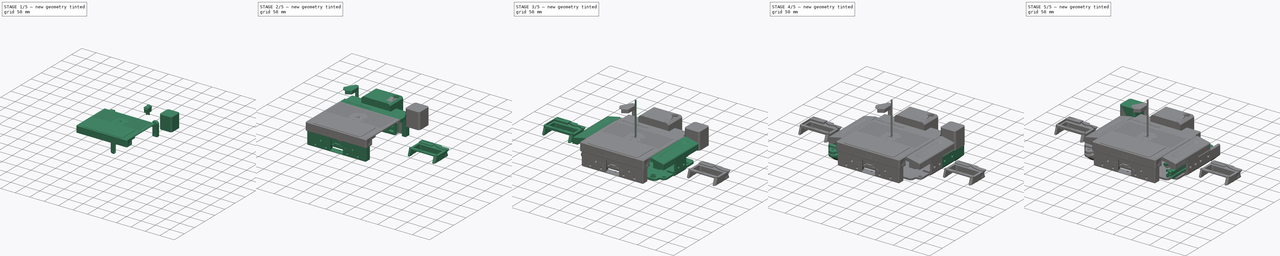
[diagram: build sequence overview — one tinted view per stage of 5, left to right]
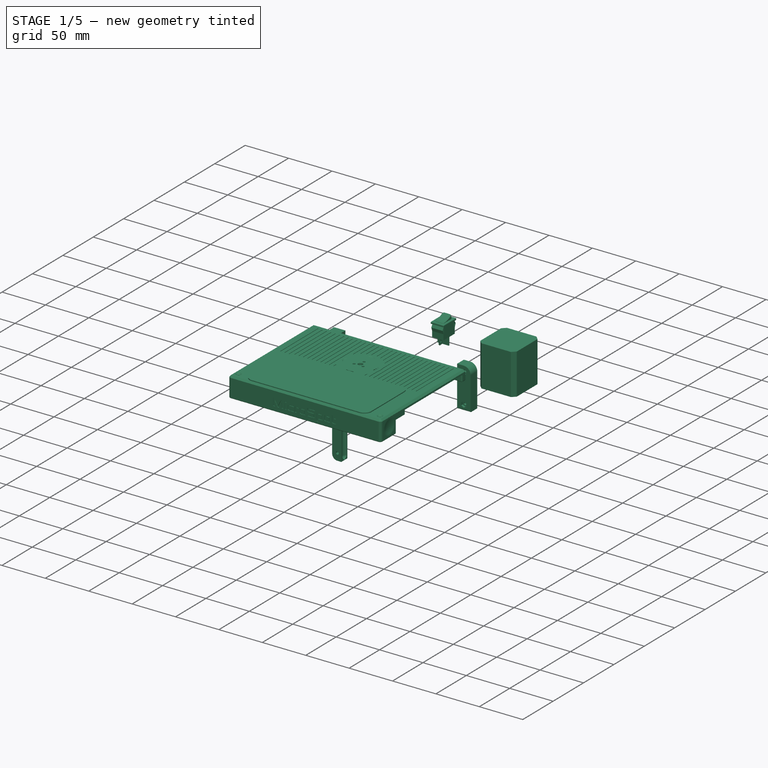
[diagram: stage 1 of 5 — iso view after this stage's code; geometry added in this stage tinted green]
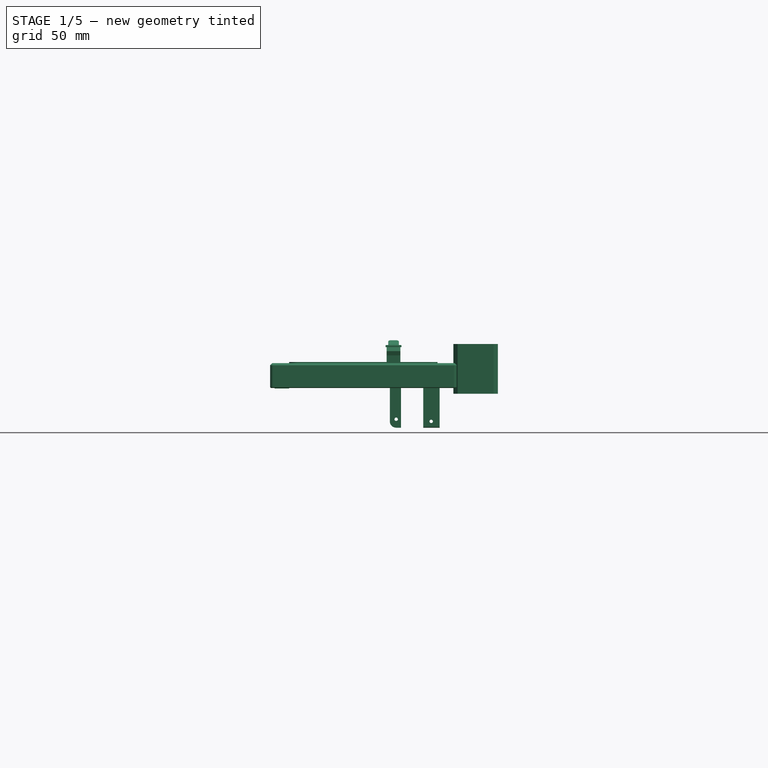
[diagram: stage 1 of 5 — front view after this stage's code; geometry added in this stage tinted green]
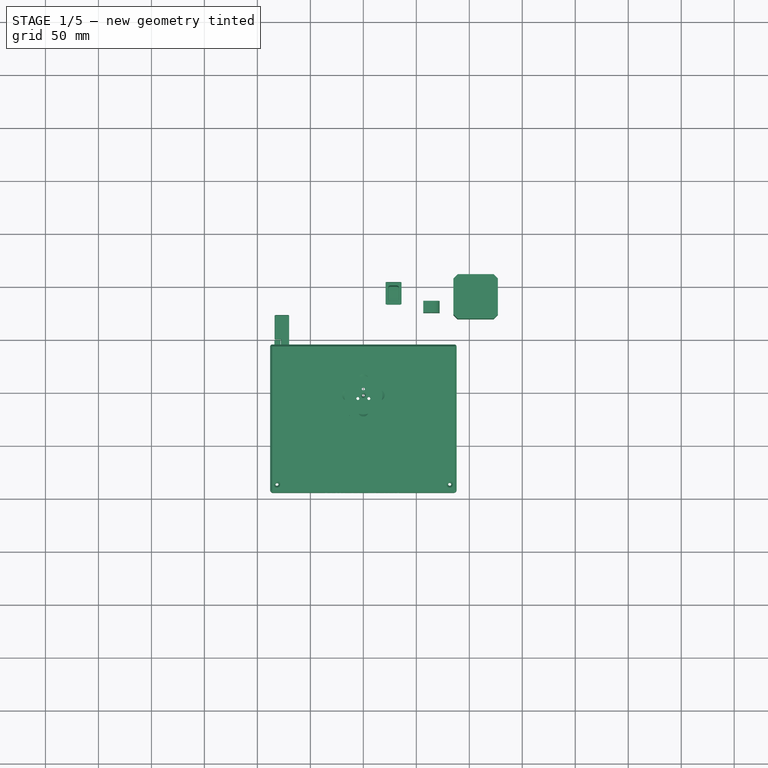
[diagram: stage 1 of 5 — top view after this stage's code; geometry added in this stage tinted green]
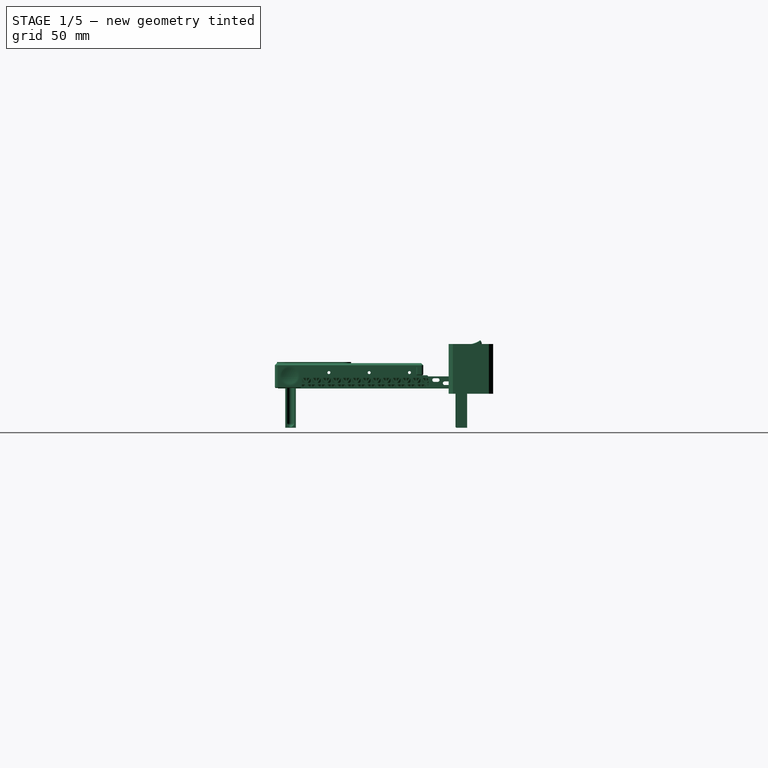
[diagram: stage 1 of 5 — right view after this stage's code; geometry added in this stage tinted green]
FCSTD DOCUMENT  (FreeCAD 0.16RUnknown)
Label: Assembly
License: CreativeCommons Attribution-ShareAlike
LicenseURL: http://creativecommons.org/licenses/by-sa/4.0/
objects: Part::FeaturePython×46, App::DocumentObjectGroup×30, Part::Feature×22, Part::Mirroring×22, Part::Cylinder×8, Sketcher::SketchObject×2, Part::Box×2, Part::Compound×2, PartDesign::Pad×1, Part::Chamfer×1
note: 107 computed .brp shape members not serialized (recipe doc carries the construction recipe); baked Part::Feature solids carry a one-line shape summary decoded from their .brp

FEATURE [Part::FeaturePython] FrontCraneGuide_01  label="FrontCraneGuide"  # a2plus imported part (geometry in sourceFile) (typed FeaturePython)
  Placement = pos=(0,-75,10) rot=(0,0,1;0rad)
  fixedPosition = false
  sourceFile = ./Step/Printed/Axes/ZAxis/FrontCraneGuide.fcstd
  timeLastImport = 1.541e+09
  updateColors = true
FEATURE [Part::FeaturePython] DrawerGuide_01  label="DrawerGuide"  # a2plus imported part (geometry in sourceFile) (typed FeaturePython)
  Placement = pos=(70,-92,25) rot=(0,0,1;0rad)
  fixedPosition = false
  sourceFile = ./src/Axes/ZCarriage/DrawerGuide.fcstd
  timeLastImport = 1.541e+09
  updateColors = true
FEATURE [Part::Mirroring] Part__Mirroring030  label="DrawerGuide (Mirror #20)"
  Base = (0,0,0)
  Normal = (1,0,0)
  Source = -> DrawerGuide_01
FEATURE [Part::FeaturePython] BackCraneGuide_step1_01  label="BackCraneGuide"  # a2plus imported part (geometry in sourceFile) (typed FeaturePython)
  Placement = pos=(0,60,46) rot=(0,0,1;0rad)
  fixedPosition = false
  sourceFile = ./Step/Printed/Axes/ZAxis/BackCraneGuide.step
  timeLastImport = 1.541e+09
  updateColors = true
FEATURE [App::DocumentObjectGroup] Group028  label="Z_PrintedStructural"
  Group = -> [FocusWheelHolder_01,FrontCrane_01,UpperBackCover_01,Part__Mirroring031,ThumbWheel_01]
FEATURE [Part::FeaturePython] UpperFrontRail_01  label="UpperFrontRail"  # a2plus imported part (geometry in sourceFile) (typed FeaturePython)
  Placement = pos=(78,-92,25) rot=(0,0,1;0rad)
  fixedPosition = false
  sourceFile = ./src/UpperLid/UpperLidRail.fcstd
  timeLastImport = 1.541e+09
  updateColors = true
FEATURE [Part::Mirroring] Part__Mirroring032  label="UpperFrontRail (Mirror #22)"
  Base = (0,0,0)
  Normal = (1,0,0)
  Source = -> UpperFrontRail_01
FEATURE [Part::FeaturePython] UpperCover_01  label="UpperCover"  # a2plus imported part (geometry in sourceFile) (typed FeaturePython)
  Placement = pos=(0,-3,45) rot=(0,0,1;0rad)
  fixedPosition = false
  sourceFile = ./src/UpperLid/UpperCover.fcstd
  timeLastImport = 1.541e+09
  updateColors = true
FEATURE [App::DocumentObjectGroup] Group032  label="ElecBox_PrintedStructural"
  Group = -> [Lid_step1_01,ElecBase_step1_01]
FEATURE [App::DocumentObjectGroup] Group033  label="Z_PrntedTribologic"
  Group = -> [Part__Mirroring025,Part__Mirroring026,Part__Mirroring027,Part__Mirroring030,DrawerGuide_01,FrontGuide_01,FrontCraneGuide_01,BackCraneGuide_step1_01]
FEATURE [App::DocumentObjectGroup] Group027  label="ZAxis"
  Group = -> [Group028,Group033]
FEATURE [App::DocumentObjectGroup] Group036  label="UpperLid_PrintedStructural"
  Group = -> [UpperCover_01]
FEATURE [App::DocumentObjectGroup] Group037  label="UpperLid_PrintedTribologic"
  Group = -> [Part__Mirroring032,UpperFrontRail_01]
FEATURE [Sketcher::SketchObject] Sketch001  label="GelPad_src"
  sketch-geometry (8):
    g0: LineSegment StartX=-62 StartY=35 StartZ=0 EndX=62 EndY=35 EndZ=0
    g1: LineSegment StartX=70 StartY=27 StartZ=0 EndX=70 EndY=-27 EndZ=0
    g2: LineSegment StartX=62 StartY=-35 StartZ=0 EndX=-62 EndY=-35 EndZ=0
    g3: LineSegment StartX=-70 StartY=-27 StartZ=0 EndX=-70 EndY=27 EndZ=0
    g4: ArcOfCircle CenterX=-62 CenterY=27 CenterZ=0 NormalX=0 NormalY=0 NormalZ=1 Radius=8 StartAngle=1.5708 EndAngle=3.14159
    g5: ArcOfCircle CenterX=-62 CenterY=-27 CenterZ=0 NormalX=0 NormalY=0 NormalZ=1 Radius=8 StartAngle=3.14159 EndAngle=4.71239
    g6: ArcOfCircle CenterX=62 CenterY=27 CenterZ=0 NormalX=0 NormalY=0 NormalZ=1 Radius=8 StartAngle=0 EndAngle=1.5708
    g7: ArcOfCircle CenterX=62 CenterY=-27 CenterZ=0 NormalX=0 NormalY=0 NormalZ=1 Radius=8 StartAngle=4.71239 EndAngle=6.28319
  constraints (19):
    c: Horizontal(g0)
    c: Horizontal(g2)
    c: Vertical(g1)
    c: Vertical(g3)
    c: Tangent(g0,g4) = 1.5708
    c: Tangent(g3,g4) = 1.5708
    c: Tangent(g3,g5) = 1.5708
    c: Tangent(g2,g5) = 1.5708
    c: Tangent(g0,g6) = 1.5708
    c: Tangent(g1,g6) = 1.5708
    c: Tangent(g1,g7) = 1.5708
    c: Tangent(g2,g7) = 1.5708
    c: Equal(g4,g5)
    c: Equal(g5,g7)
    c: Equal(g7,g6)
    c: DistanceX(g3,g1) = 140
    c: DistanceY(g2,g0) = 70
    c: Radius(g6) = 8
    c: Symmetric(g5,g6,g-1)
FEATURE [PartDesign::Pad] Pad  label="GelPad_src001"
  Length = 1
  Length2 = 100
  Sketch = -> Sketch001
  Type = 0
FEATURE [App::DocumentObjectGroup] Group021  label="Component_src"
  Group = -> [Cylinder007,Pad]
FEATURE [Part::FeaturePython] Clone021  label="GelPad"  # Draft clone (typed FeaturePython)
  Objects = -> [Pad]
  Placement = pos=(0,-58,49) rot=(0,0,1;0rad)
  Scale = (1,1,1)
FEATURE [App::DocumentObjectGroup] Group038  label="UpperLid_Sticky"
  Group = -> [Clone021]
FEATURE [App::DocumentObjectGroup] Group030  label="UpperLid"
  Group = -> [Group036,Group037,Group038]
FEATURE [Part::Box] Box002  label="NEMABox"
  Height = 47
  Length = 42
  Placement = pos=(85,69,20) rot=(0,0,1;0rad)
  Width = 42
FEATURE [Part::FeaturePython] RLEIL_RL3_4T125_55_01  # a2plus imported part (geometry in sourceFile) (typed FeaturePython)
  Placement = pos=(28.5,93,64) rot=(0.57735,-0.57735,-0.57735;2.0944rad)
  fixedPosition = false
  sourceFile = ./src/Electronics Holder/Reference/RLEIL RL3-4T125 55.fcstd
  timeLastImport = 1.541e+09
  updateColors = true
FEATURE [App::DocumentObjectGroup] Group039  label="ElecBox_Electrical"
  Group = -> [RLEIL_RL3_4T125_55_01]
FEATURE [App::DocumentObjectGroup] Group  label="ElectronicsBox"
  Group = -> [Group032,Group039]
FEATURE [Part::Chamfer] Chamfer  label="NEMA"
  Base = -> Box002
  Edges = 4 edges r=4: [Edge1,Edge3,Edge5,Edge7]
FEATURE [App::DocumentObjectGroup] Group008  label="Electronics"
  Group = -> [Part__Mirroring003,Compound004,Compound018001]
FEATURE [App::DocumentObjectGroup] Group004  label="MainFrame"
  Group = -> [Group005,Group006,Group007,Group008]
FEATURE [Part::FeaturePython] Lower_step1_01  label="Lower"  # a2plus imported part (geometry in sourceFile) (typed FeaturePython)
  Placement = pos=(0,-3,41.8) rot=(0,0,1;0rad)
  fixedPosition = false
  sourceFile = ./../Optical/KO_LAQ0202nLAP0617/Lower.step
  timeLastImport = 1.54117e+09
  updateColors = true
FEATURE [Part::FeaturePython] Middle_step1_01  label="Middle"  # a2plus imported part (geometry in sourceFile) (typed FeaturePython)
  Placement = pos=(0,-3,41.8) rot=(0,0,1;0rad)
  fixedPosition = false
  sourceFile = ./../Optical/KO_LAQ0202nLAP0617/Middle.step
  timeLastImport = 1.54117e+09
  updateColors = true
FEATURE [Part::FeaturePython] Upper_step1_01  label="Upper"  # a2plus imported part (geometry in sourceFile) (typed FeaturePython)
  Placement = pos=(0,-3,41.8) rot=(0,0,1;0rad)
  fixedPosition = false
  sourceFile = ./../Optical/KO_LAQ0202nLAP0617/Upper.step
  timeLastImport = 1.54117e+09
  updateColors = true
FEATURE [App::DocumentObjectGroup] Group035  label="Optic_PrintedStructural"
  Group = -> [Lower_step1_01,Middle_step1_01,Upper_step1_01]
FEATURE [Part::FeaturePython] FlexiRingExp_01  label="FlexiRing"  # a2plus imported part (geometry in sourceFile) (typed FeaturePython)
  Placement = pos=(0,-3,45) rot=(0,0,1;0rad)
  fixedPosition = false
  sourceFile = ./../Optical/KO_LAQ0202nLAP0617/FlexiRing.fcstd
  timeLastImport = 1.54117e+09
  updateColors = true
FEATURE [App::DocumentObjectGroup] Group034  label="Optic_PrintedFlexible"
  Group = -> [FlexiRingExp_01]
FEATURE [App::DocumentObjectGroup] Group029  label="Optics"
  Group = -> [Group034,Group035]
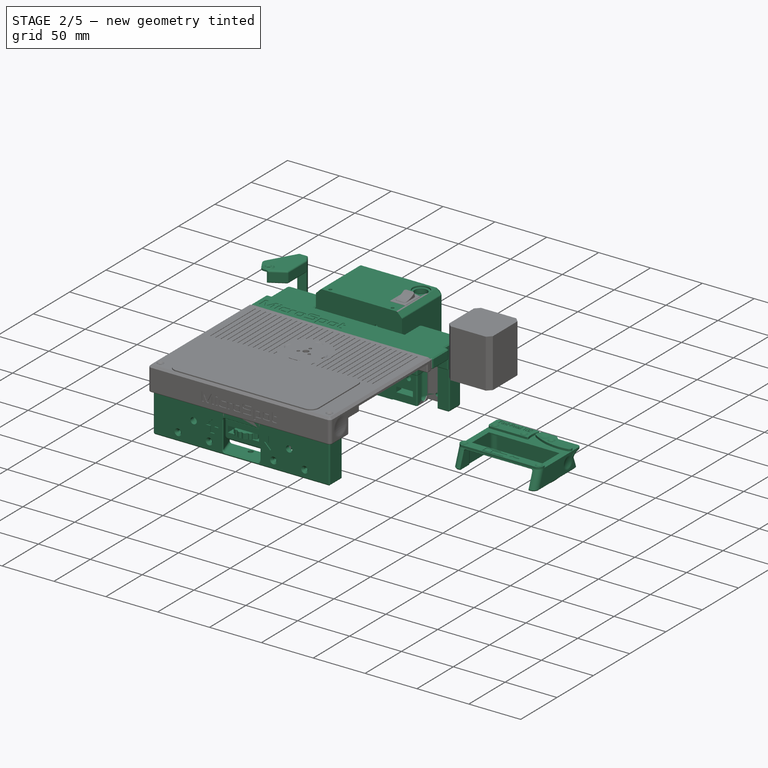
[diagram: stage 2 of 5 — iso view after this stage's code; geometry added in this stage tinted green]
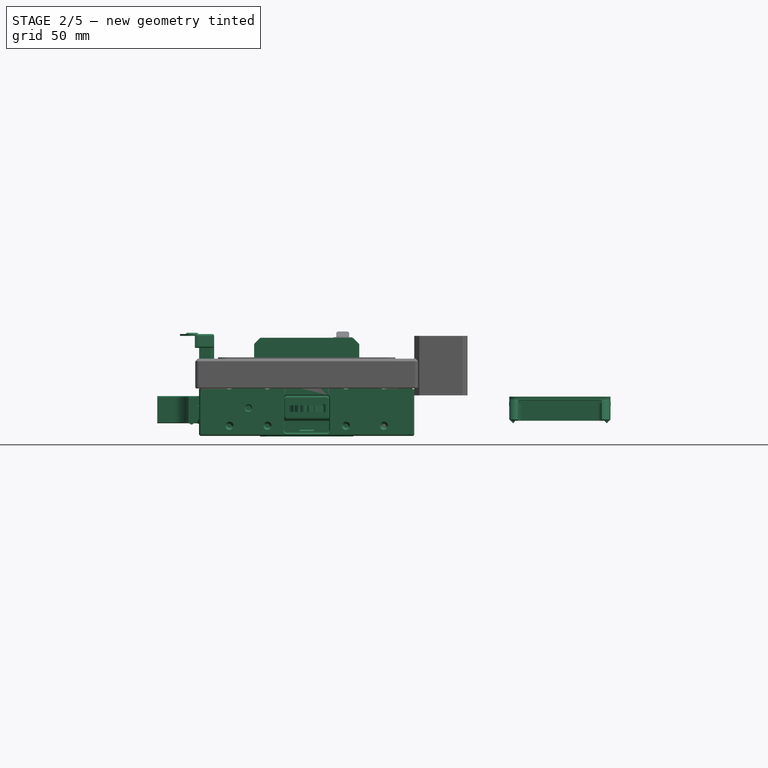
[diagram: stage 2 of 5 — front view after this stage's code; geometry added in this stage tinted green]
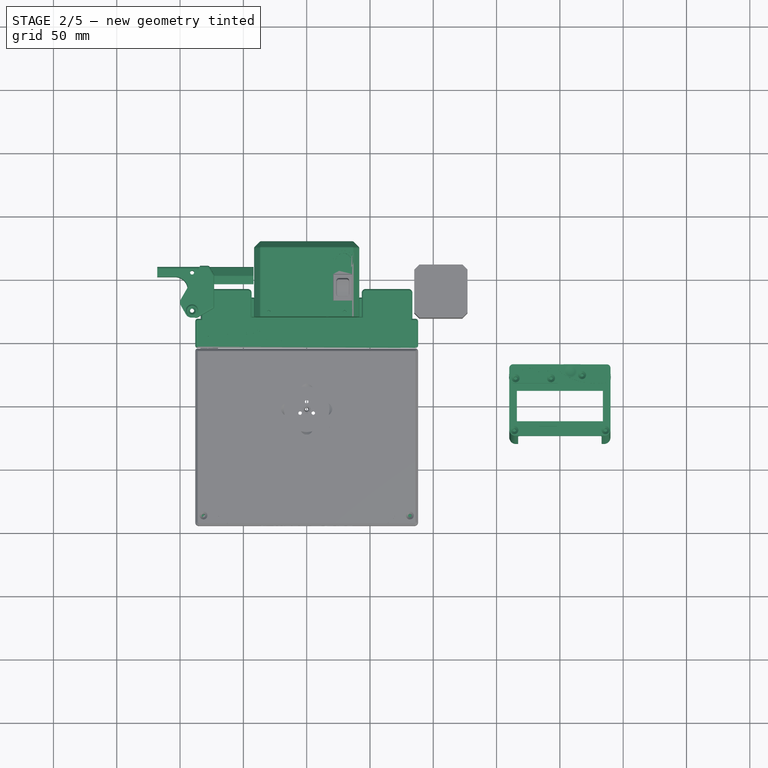
[diagram: stage 2 of 5 — top view after this stage's code; geometry added in this stage tinted green]
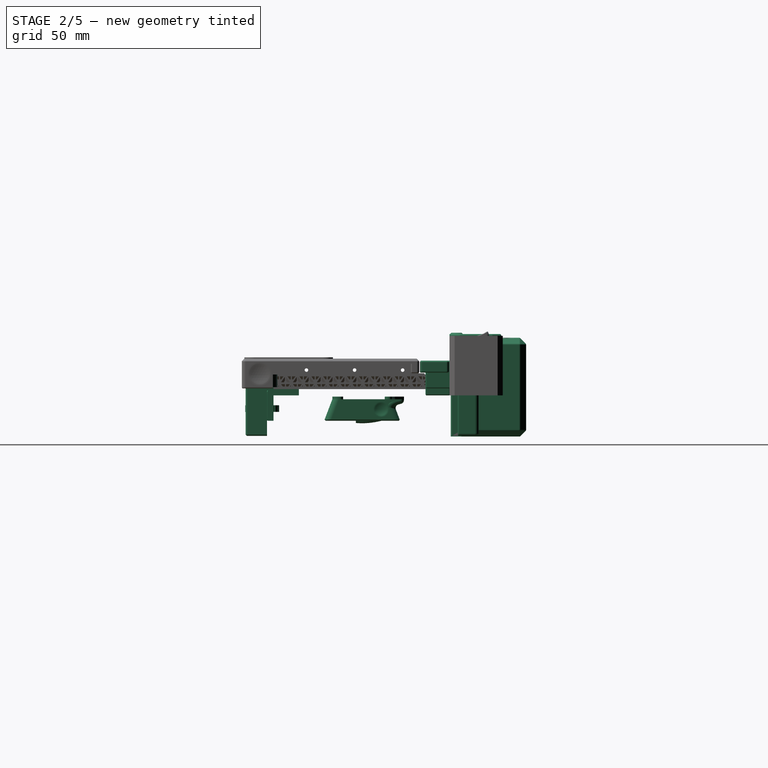
[diagram: stage 2 of 5 — right view after this stage's code; geometry added in this stage tinted green]
FEATURE [Part::FeaturePython] Lid_step1_01  label="Lid"  # a2plus imported part (geometry in sourceFile) (typed FeaturePython)
  Placement = pos=(40,70,-11) rot=(0,0,1;3.14159rad)
  fixedPosition = false
  sourceFile = ./src/Electronics Holder/ElecLid.fcstd
  timeLastImport = 1.541e+09
  updateColors = true
FEATURE [Part::FeaturePython] ElecBase_step1_01  label="ElecMain"  # a2plus imported part (geometry in sourceFile) (typed FeaturePython)
  Placement = pos=(0,70,20) rot=(0,0,1;0rad)
  fixedPosition = false
  sourceFile = ./src/Electronics Holder/ElecMain.fcstd
  timeLastImport = 1.541e+09
  updateColors = true
FEATURE [Part::FeaturePython] ThumbWheel_01  label="FocusWheel"  # a2plus imported part (geometry in sourceFile) (typed FeaturePython)
  Placement = pos=(0,-79,7) rot=(0,0,1;0rad)
  fixedPosition = false
  sourceFile = ./src/Axes/ZCarriage/FocusWheel.fcstd
  timeLastImport = 1.541e+09
  updateColors = true
FEATURE [App::DocumentObjectGroup] Group024  label="Neubauer"
  Group = -> [SampleFix_02,SampleTop_01,SampleTray_02]
FEATURE [Part::FeaturePython] SampleFix_003  label="FastReadFix"  # a2plus imported part (geometry in sourceFile) (typed FeaturePython)
  Placement = pos=(200,0,17) rot=(0,0,1;0rad)
  fixedPosition = false
  sourceFile = ./src/Axes/XCarriage/FastRead102/FastReadFix.fcstd
  timeLastImport = 1.541e+09
  updateColors = true
FEATURE [Part::FeaturePython] SampleTop_002  label="FastReadTop"  # a2plus imported part (geometry in sourceFile) (typed FeaturePython)
  Placement = pos=(200,0,17) rot=(0,0,1;3.14159rad)
  fixedPosition = false
  sourceFile = ./src/Axes/XCarriage/FastRead102/FastReadTop.fcstd
  timeLastImport = 1.541e+09
  updateColors = true
FEATURE [Part::FeaturePython] SampleTray_003  label="FastReadTray"  # a2plus imported part (geometry in sourceFile) (typed FeaturePython)
  Placement = pos=(200,0,0) rot=(0,0,1;0rad)
  fixedPosition = false
  sourceFile = ./src/Axes/XCarriage/Neubauer/NeubauerTray.fcstd
  timeLastImport = 1.541e+09
  updateColors = true
FEATURE [App::DocumentObjectGroup] Group025  label="FastRead"
  Group = -> [SampleTop_002,SampleFix_003,SampleTray_003]
FEATURE [App::DocumentObjectGroup] Group022  label="Trays"
  Group = -> [Group023,Group024,Group025]
FEATURE [Part::FeaturePython] FocusWheelHolder_01  label="FocusWheelHolder"  # a2plus imported part (geometry in sourceFile) (typed FeaturePython)
  Placement = pos=(0,-70,10) rot=(0,0,1;0rad)
  fixedPosition = false
  sourceFile = ./src/Axes/ZCarriage/FocusWheelHolder.fcstd
  timeLastImport = 1.541e+09
  updateColors = true
FEATURE [Part::FeaturePython] FrontGuide_01  label="FrontGuide"  # a2plus imported part (geometry in sourceFile) (typed FeaturePython)
  Placement = pos=(46,-70,10) rot=(0,0,1;0rad)
  fixedPosition = false
  sourceFile = ./src/Axes/ZCarriage/FrontGuide.fcstd
  timeLastImport = 1.541e+09
  updateColors = true
FEATURE [Part::FeaturePython] FrontCrane_01  label="FrontCrane"  # a2plus imported part (geometry in sourceFile) (typed FeaturePython)
  Placement = pos=(0,-75,10) rot=(0,0,1;0rad)
  fixedPosition = false
  sourceFile = ./src/Axes/ZCarriage/FrontCrane.fcstd
  timeLastImport = 1.541e+09
  updateColors = true
FEATURE [Part::Mirroring] Part__Mirroring025  label="FrontGuide (Mirror #16)"
  Base = (0,0,0)
  Normal = (1,0,0)
  Source = -> FrontGuide_01
FEATURE [Part::Mirroring] Part__Mirroring026  label="FrontCraneGuide (Mirror #17)"
  Base = (0,0,0)
  Normal = (1,0,0)
  Source = -> FrontCraneGuide_01
FEATURE [Part::FeaturePython] Clone  label="Clone of FrontCraneGuide (Mirror #17)"  # Draft clone (typed FeaturePython)
  Objects = -> [Part__Mirroring026]
  Placement = pos=(92,0,0) rot=(0,0,1;0rad)
  Scale = (1,1,1)
FEATURE [Part::Mirroring] Part__Mirroring027  label="Clone of FrontCraneGuide (Mirror #18)"
  Base = (0,0,0)
  Normal = (1,0,0)
  Source = -> Clone
FEATURE [Part::FeaturePython] PulleyCover_01  label="PulleyCover"  # a2plus imported part (geometry in sourceFile) (typed FeaturePython)
  Placement = pos=(106,90,20) rot=(0,0,1;0rad)
  fixedPosition = false
  sourceFile = ./src/MainFrame/PulleyCover.fcstd
  timeLastImport = 1.541e+09
  updateColors = true
FEATURE [Part::Mirroring] Part__Mirroring029  label="PulleyCover_01 (Mirror #20)"
  Base = (0,0,0)
  Normal = (1,0,0)
  Source = -> PulleyCover_01
FEATURE [App::DocumentObjectGroup] Group006  label="MainFrame_PrintedStructural"
  Group = -> [NEMAPulley_01,Part__Mirroring018,LBackCorner_step1_01,RBackCorner_step1_01,Part__Mirroring023,FrontIdler_01,Part__Mirroring024,LowerCover_step1_01,TubeLid_step1_01,AxisShield_01,LAxisShield_step1_01,Part__Mirroring029]
FEATURE [Part::FeaturePython] UpperBackCover_01  label="UpperBackCover"  # a2plus imported part (geometry in sourceFile) (typed FeaturePython)
  Placement = pos=(0,60,46) rot=(0,0,1;0rad)
  fixedPosition = false
  sourceFile = ./src/Axes/ZCarriage/UpperBackCover.fcstd
  timeLastImport = 1.541e+09
  updateColors = true
FEATURE [Part::Mirroring] Part__Mirroring031  label="BackCraneGuide (Mirror #21)"
  Base = (0,0,0)
  Normal = (1,0,0)
  Source = -> BackCraneGuide_step1_01
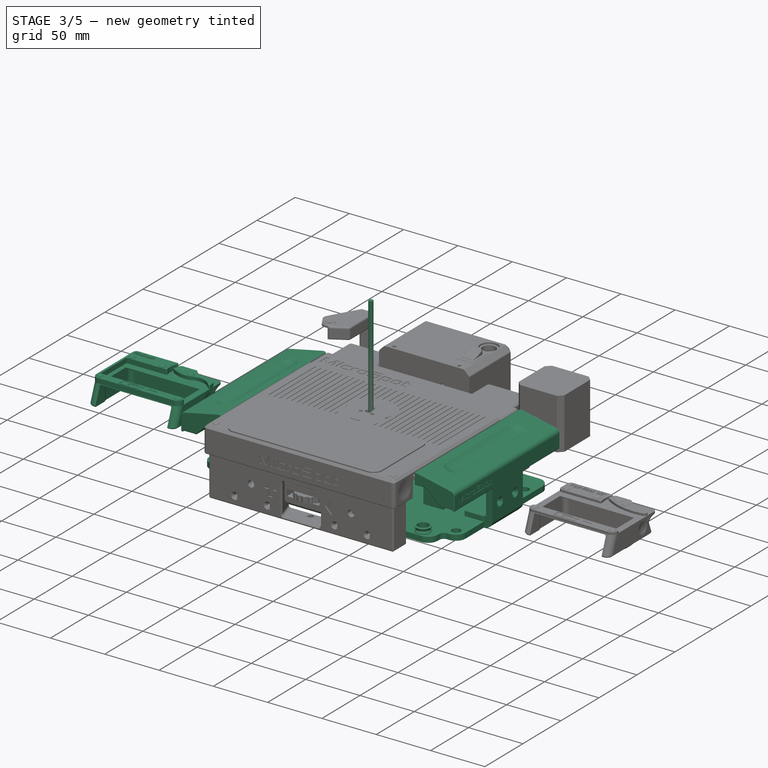
[diagram: stage 3 of 5 — iso view after this stage's code; geometry added in this stage tinted green]
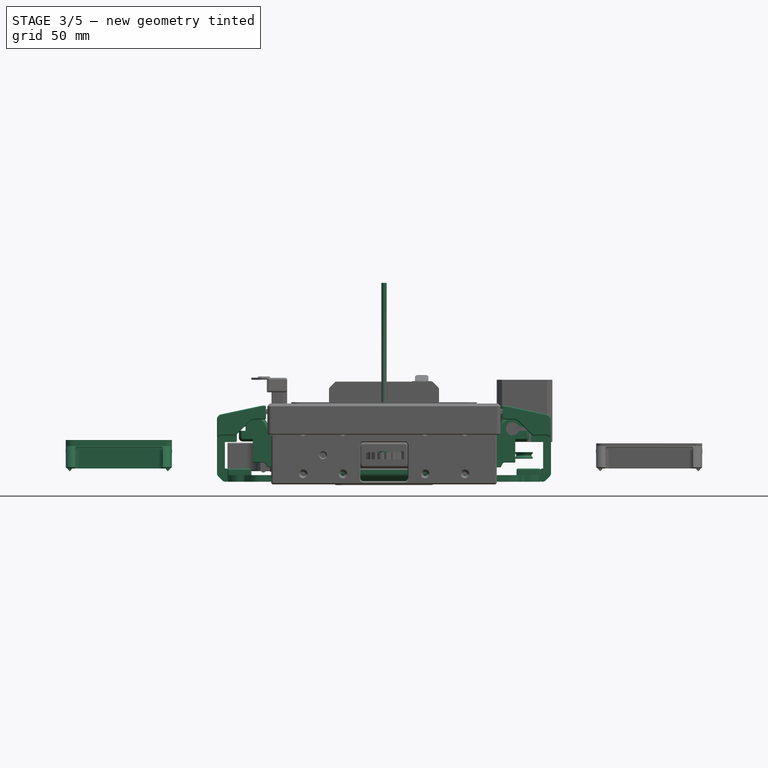
[diagram: stage 3 of 5 — front view after this stage's code; geometry added in this stage tinted green]
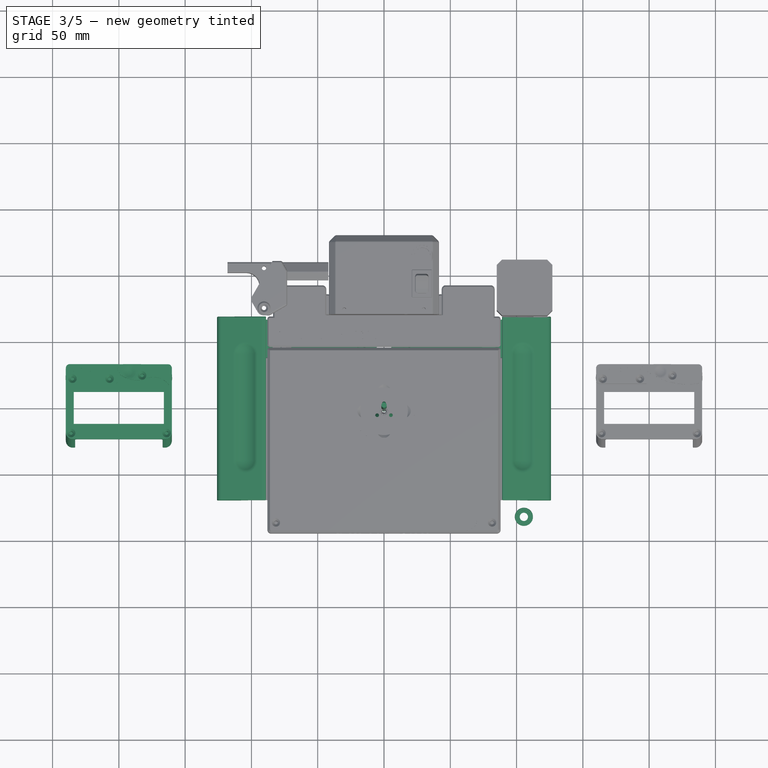
[diagram: stage 3 of 5 — top view after this stage's code; geometry added in this stage tinted green]
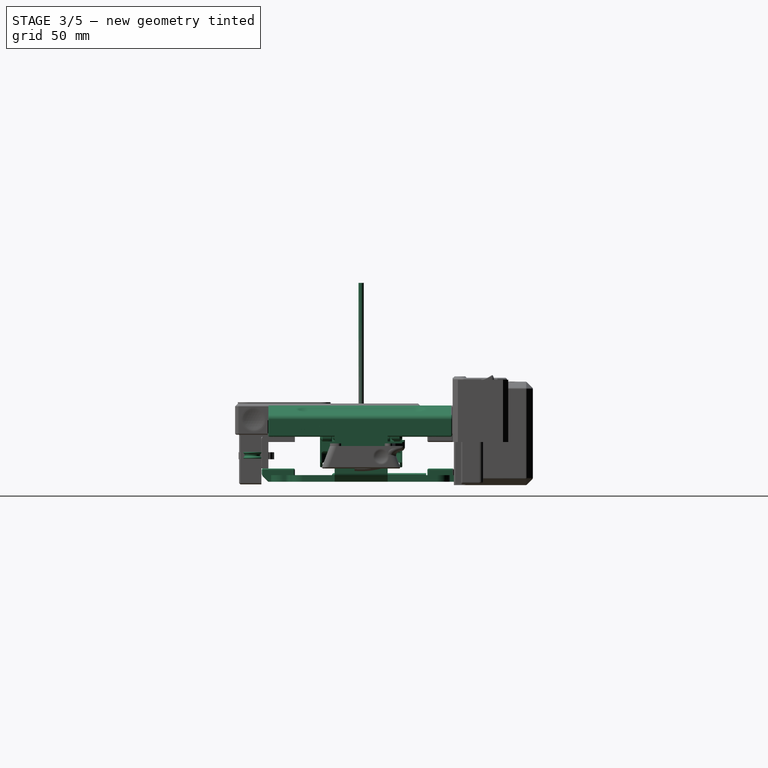
[diagram: stage 3 of 5 — right view after this stage's code; geometry added in this stage tinted green]
FEATURE [Part::Cylinder] Cylinder003  label="LM8UU001"
  Angle = 360
  Height = 24
  Placement = pos=(-97,27,30) rot=(1,0,0;1.5708rad)
  Radius = 7.5
FEATURE [Part::FeaturePython] FrontIdler_01  label="FrontIdler"  # a2plus imported part (geometry in sourceFile) (typed FeaturePython)
  Placement = pos=(105.5,-82,8) rot=(0,0,1;0rad)
  fixedPosition = false
  sourceFile = ./src/MainFrame/FrontIdler.fcstd
  timeLastImport = 1.5206e+09
  updateColors = true
FEATURE [Part::FeaturePython] SampleFix_01  label="StdTop"  # a2plus imported part (geometry in sourceFile) (typed FeaturePython)
  Placement = pos=(0,0,42) rot=(0,0,1;3.14159rad)
  fixedPosition = false
  sourceFile = ./src/Axes/XCarriage/StdTray/StdTop.fcstd
  timeLastImport = 1.541e+09
  updateColors = true
FEATURE [Part::Feature] Compound018001  label="freaduino-uno"
  Placement = pos=(19,81,61) rot=(-0.57735,0.57735,0.57735;2.0944rad)
  shape: bbox 54.65 x 15.28 x 70.58 mm, 4196 faces, 219 solids (baked)
FEATURE [Part::FeaturePython] StringTensioner_01  label="StdFix"  # a2plus imported part (geometry in sourceFile) (typed FeaturePython)
  Placement = pos=(0,0,42) rot=(0,0,1;0rad)
  fixedPosition = false
  sourceFile = ./src/Axes/XCarriage/StdTray/StdFix.fcstd
  timeLastImport = 1.541e+09
  updateColors = true
FEATURE [Part::Cylinder] Cylinder007  label="M4ThreadRod"
  Angle = 360
  Height = 140
  Radius = 2
FEATURE [Part::FeaturePython] LowerCover_step1_01  label="LowerCover"  # a2plus imported part (geometry in sourceFile) (typed FeaturePython)
  Placement = pos=(0,-3,-5) rot=(0,0,1;0rad)
  fixedPosition = false
  sourceFile = ./src/MainFrame/LowerCover.fcstd
  timeLastImport = 1.54117e+09
  updateColors = true
FEATURE [Part::FeaturePython] TubeLid_step1_01  label="TubeLid"  # a2plus imported part (geometry in sourceFile) (typed FeaturePython)
  Placement = pos=(0,-3,-5) rot=(0,0,1;0rad)
  fixedPosition = false
  sourceFile = ./Step/Printed/MainFrame/TubeLid.step
  timeLastImport = 1.54117e+09
  updateColors = true
FEATURE [Part::FeaturePython] YCarriage_01  label="RYCarriage"  # a2plus imported part (geometry in sourceFile) (typed FeaturePython)
  Placement = pos=(70,0,10) rot=(0,0,1;0rad)
  fixedPosition = false
  sourceFile = ./Step/Printed/Axes/YCarriage/RYCarriage.step
  timeLastImport = 1.5206e+09
  updateColors = true
FEATURE [Part::FeaturePython] Clone020  label="Clone of LM8UU005"  # Draft clone (typed FeaturePython)
  Objects = -> [Cylinder003]
  Placement = pos=(-97,-3,30) rot=(1,0,0;1.5708rad)
  Scale = (1,1,1)
FEATURE [App::DocumentObjectGroup] Group017  label="Y_Metal"
  Group = -> [Cylinder003,Clone008,Clone009,Part__Mirroring008,Part__Mirroring013,Part__Mirroring015,Clone020]
FEATURE [Part::FeaturePython] LYCarriage_step1_01  label="LYCarriage"  # a2plus imported part (geometry in sourceFile) (typed FeaturePython)
  Placement = pos=(-70,0,10) rot=(0,0,1;0rad)
  fixedPosition = false
  sourceFile = ./Step/Printed/Axes/YCarriage/LYCarriage.step
  timeLastImport = 1.5206e+09
  updateColors = true
FEATURE [App::DocumentObjectGroup] Group016  label="Y_PrintedStructural"
  Group = -> [Part__Mirroring022,YCarriage_01,LYCarriage_step1_01]
FEATURE [App::DocumentObjectGroup] Group015  label="YCarriage"
  Group = -> [Group016,Group017,Compound002]
FEATURE [Part::FeaturePython] AxisShield_01  label="RAxisShield"  # a2plus imported part (geometry in sourceFile) (typed FeaturePython)
  Placement = pos=(110,0,10) rot=(0,0,1;0rad)
  fixedPosition = false
  sourceFile = ./src/MainFrame/AxisShield.fcstd
  timeLastImport = 1.541e+09
  updateColors = true
FEATURE [Part::FeaturePython] LAxisShield_step1_01  label="LAxisShield"  # a2plus imported part (geometry in sourceFile) (typed FeaturePython)
  Placement = pos=(-110,0,10) rot=(0,0,1;0rad)
  fixedPosition = false
  sourceFile = ./Step/Printed/MainFrame/LAxisShield.step
  timeLastImport = 1.541e+09
  updateColors = true
FEATURE [Part::FeaturePython] SampleTray_01  label="StdTray"  # a2plus imported part (geometry in sourceFile) (typed FeaturePython)
  Placement = pos=(0,0,25) rot=(0,0,1;0rad)
  fixedPosition = false
  sourceFile = ./src/Axes/XCarriage/StdTray/StdTray.fcstd
  timeLastImport = 1.541e+09
  updateColors = true
FEATURE [App::DocumentObjectGroup] Group023  label="Standard"
  Group = -> [SampleTray_01,SampleFix_01,StringTensioner_01]
FEATURE [Part::FeaturePython] SampleFix_02  label="NeubauerFix"  # a2plus imported part (geometry in sourceFile) (typed FeaturePython)
  Placement = pos=(-200,0,17) rot=(0,0,1;0rad)
  fixedPosition = false
  sourceFile = ./src/Axes/XCarriage/Neubauer/NeubauerFix.fcstd
  timeLastImport = 1.541e+09
  updateColors = true
FEATURE [Part::FeaturePython] SampleTop_01  label="NeubauerTop"  # a2plus imported part (geometry in sourceFile) (typed FeaturePython)
  Placement = pos=(-200,0,17) rot=(0,0,1;3.14159rad)
  fixedPosition = false
  sourceFile = ./src/Axes/XCarriage/Neubauer/NeubauerTop.fcstd
  timeLastImport = 1.541e+09
  updateColors = true
FEATURE [Part::FeaturePython] SampleTray_02  label="NeubauerTray"  # a2plus imported part (geometry in sourceFile) (typed FeaturePython)
  Placement = pos=(-200,0,0) rot=(0,0,1;0rad)
  fixedPosition = false
  sourceFile = ./src/Axes/XCarriage/Neubauer/NeubauerTray.fcstd
  timeLastImport = 1.541e+09
  updateColors = true
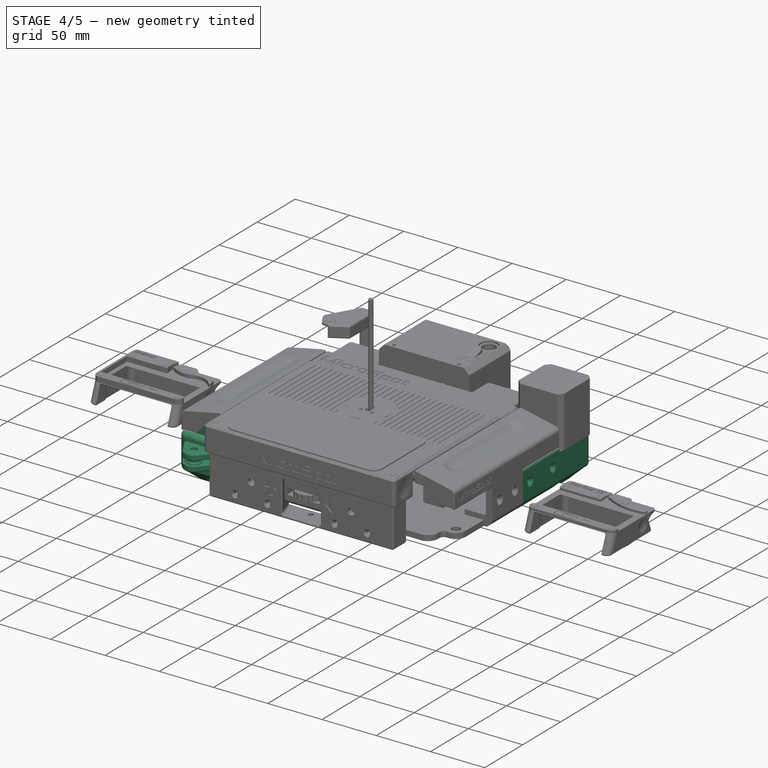
[diagram: stage 4 of 5 — iso view after this stage's code; geometry added in this stage tinted green]
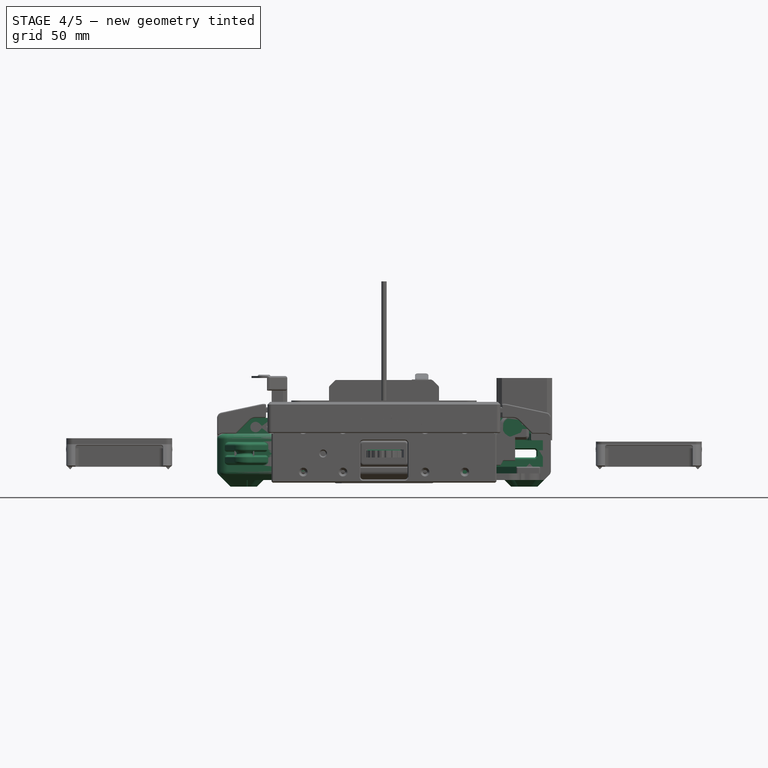
[diagram: stage 4 of 5 — front view after this stage's code; geometry added in this stage tinted green]
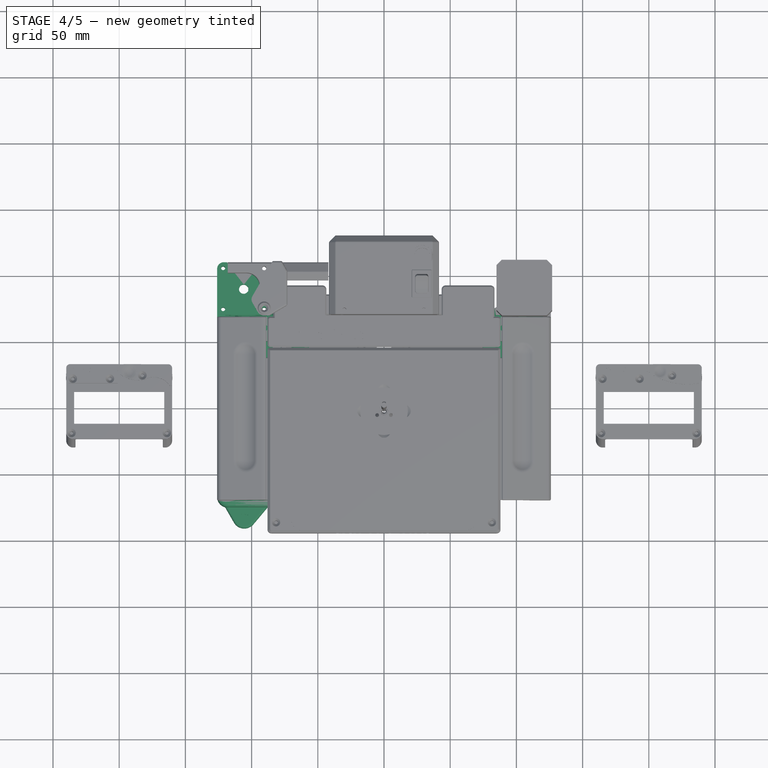
[diagram: stage 4 of 5 — top view after this stage's code; geometry added in this stage tinted green]
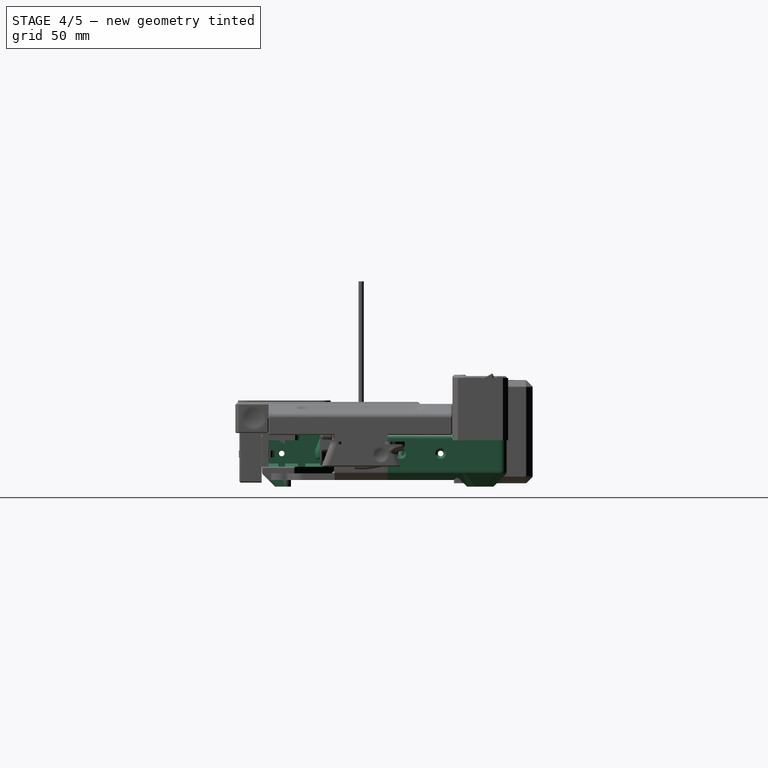
[diagram: stage 4 of 5 — right view after this stage's code; geometry added in this stage tinted green]
FEATURE [Part::Cylinder] Cylinder004  label="623ZZ"
  Angle = 360
  Height = 4
  Placement = pos=(95,22,8) rot=(0,0,1;0rad)
  Radius = 5
FEATURE [App::DocumentObjectGroup] Group014  label="X_Metal"
  Group = -> [Cylinder002,Cylinder005,Cylinder006]
FEATURE [Part::FeaturePython] Clone008  label="Clone of LM8UU001"  # Draft clone (typed FeaturePython)
  Objects = -> [Cylinder003]
  Placement = pos=(97,-3,30) rot=(1,0,0;1.5708rad)
  Scale = (1,1,1)
FEATURE [Part::FeaturePython] Clone009  label="Clone of LM8UU004"  # Draft clone (typed FeaturePython)
  Objects = -> [Cylinder003]
  Placement = pos=(97,27,30) rot=(1,0,0;1.5708rad)
  Scale = (1,1,1)
FEATURE [Part::Feature] Part__Feature  label="Compound001"
  shape: bbox 1.6 x 40 x 16.5 mm, 8 faces (baked)
FEATURE [Part::Feature] Part__Feature003  label="Compound006"
  shape: bbox 2.9 x 1 x 1.2 mm, 8 faces (baked)
FEATURE [Part::Feature] Part__Feature004  label="Compound003"
  shape: bbox 5.75 x 12.9 x 3.155 mm, 39 faces (baked)
FEATURE [Part::Feature] Part__Feature005  label="Compound007"
  shape: bbox 5.7 x 12.9 x 6 mm, 37 faces (baked)
FEATURE [Part::Feature] Part__Feature006  label="Compound008"
  shape: bbox 8.5 x 12.3 x 9.5 mm, 136 faces (baked)
FEATURE [Part::Feature] Part__Feature007  label="Compound009"
  shape: bbox 6.4 x 0.64 x 4.5 mm, 22 faces (baked)
FEATURE [Part::Feature] Part__Feature008  label="Compound010"
  shape: bbox 6.4 x 0.64 x 4.5 mm, 22 faces (baked)
FEATURE [Part::Feature] Part__Feature009  label="Compound011"
  shape: bbox 4 x 13.59 x 6.333 mm, 26 faces (baked)
FEATURE [Part::Feature] Part__Feature010  label="Compound012"
  shape: bbox 6.4 x 0.64 x 4.5 mm, 22 faces (baked)
FEATURE [Part::Compound] Compound002  label="xEndstop"
  Links = -> [Part__Feature,Part__Feature009,Part__Feature005,Part__Feature007,Part__Feature010,Part__Feature004,Part__Feature006,Part__Feature003,Part__Feature008]
  Placement = pos=(87,18,3) rot=(0,-1,0;1.5708rad)
FEATURE [Part::FeaturePython] Clone018  label="Idler623ZZ"  # Draft clone (typed FeaturePython)
  Objects = -> [Cylinder004]
  Placement = pos=(105.5,-82,8) rot=(0,0,1;0rad)
  Scale = (1,1,1)
FEATURE [Part::Mirroring] Part__Mirroring019  label="Idler623ZZ (Mirror #12)"
  Base = (0,0,0)
  Normal = (1,0,0)
  Source = -> Clone018
FEATURE [App::DocumentObjectGroup] Group007  label="MainFrame_Metal"
  Group = -> [Part__Mirroring001,Part__Mirroring019]
FEATURE [Part::Feature] Part__Feature011  label="Compound013"
  shape: bbox 1.6 x 40 x 16.5 mm, 8 faces (baked)
FEATURE [Part::Feature] Part__Feature012  label="Compound014"
  shape: bbox 2.9 x 1 x 1.2 mm, 8 faces (baked)
FEATURE [Part::Feature] Part__Feature013  label="Compound015"
  shape: bbox 5.75 x 12.9 x 3.155 mm, 39 faces (baked)
FEATURE [Part::Feature] Part__Feature014  label="Compound016"
  shape: bbox 5.7 x 12.9 x 6 mm, 37 faces (baked)
FEATURE [Part::Feature] Part__Feature015  label="Compound017"
  shape: bbox 8.5 x 12.3 x 9.5 mm, 136 faces (baked)
FEATURE [Part::Feature] Part__Feature016  label="Compound018"
  shape: bbox 6.4 x 0.64 x 4.5 mm, 22 faces (baked)
FEATURE [Part::Feature] Part__Feature017  label="Compound019"
  shape: bbox 6.4 x 0.64 x 4.5 mm, 22 faces (baked)
FEATURE [Part::Feature] Part__Feature018  label="Compound020"
  shape: bbox 4 x 13.59 x 6.333 mm, 26 faces (baked)
FEATURE [Part::Feature] Part__Feature019  label="Compound021"
  shape: bbox 6.4 x 0.64 x 4.5 mm, 22 faces (baked)
FEATURE [Part::Compound] Compound004  label="yEndstop"
  Links = -> [Part__Feature019,Part__Feature014,Part__Feature012,Part__Feature016,Part__Feature015,Part__Feature011,Part__Feature013,Part__Feature017,Part__Feature018]
  Placement = pos=(-60,53,0) rot=(0.57735,0.57735,-0.57735;2.0944rad)
FEATURE [Part::FeaturePython] MiniIdler_01  label="MiniIdler"  # a2plus imported part (geometry in sourceFile) (typed FeaturePython)
  Placement = pos=(95,-22,10) rot=(0,0,1;0rad)
  fixedPosition = false
  sourceFile = ./src/Axes/YCarriage/MiniIdler.fcstd
  timeLastImport = 1.5206e+09
  updateColors = true
FEATURE [Part::Mirroring] Part__Mirroring020  label="MiniIdler (Mirror #13)"
  Base = (0,0,0)
  Normal = (0,1,0)
  Source = -> MiniIdler_01
FEATURE [Part::Mirroring] Part__Mirroring021  label="MiniIdler (Mirror #14)"
  Base = (0,0,0)
  Normal = (1,0,0)
  Source = -> Part__Mirroring020
FEATURE [Part::Mirroring] Part__Mirroring022  label="MiniIdler (Mirror #15)"
  Base = (0,0,0)
  Normal = (0,1,0)
  Source = -> Part__Mirroring021
FEATURE [Part::Feature] Pocket001  label="Phone"
  Placement = pos=(17,10,50) rot=(0,0,1;0rad)
  shape: bbox 70 x 145 x 9 mm, 33 faces (baked)
FEATURE [App::DocumentObjectGroup] Group001  label="Non-printed parts"
  Group = -> [Box001,Sketch,Pocket001]
FEATURE [Part::FeaturePython] Xcarriage_01  label="Xcarriage"  # a2plus imported part (geometry in sourceFile) (typed FeaturePython)
  Placement = pos=(0,0,25) rot=(0,0,1;0rad)
  fixedPosition = false
  sourceFile = ./src/Axes/XCarriage/Xcarriage.fcstd
  timeLastImport = 1.541e+09
  updateColors = true
FEATURE [App::DocumentObjectGroup] Group013  label="X_PrintedStructural"
  Group = -> [Xcarriage_01]
FEATURE [App::DocumentObjectGroup] Group012  label="XCarriage"
  Group = -> [Group013,Group014]
FEATURE [Part::FeaturePython] LBackCorner_step1_01  label="LBackCorner"  # a2plus imported part (geometry in sourceFile) (typed FeaturePython)
  Placement = pos=(-106,90,20) rot=(0,0,1;0rad)
  fixedPosition = true
  sourceFile = ./Step/Printed/MainFrame/LBackCorner.step
  timeLastImport = 1.541e+09
  updateColors = true
FEATURE [Part::FeaturePython] RBackCorner_step1_01  label="RBackCorner"  # a2plus imported part (geometry in sourceFile) (typed FeaturePython)
  Placement = pos=(106,90,20) rot=(0,0,1;0rad)
  fixedPosition = false
  sourceFile = ./src/MainFrame/BackCorner.fcstd
  timeLastImport = 1.541e+09
  updateColors = true
FEATURE [Part::FeaturePython] FrontCorner_01  label="FrontCorner"  # a2plus imported part (geometry in sourceFile) (typed FeaturePython)
  Placement = pos=(110,-82,10) rot=(0,0,1;0rad)
  fixedPosition = false
  sourceFile = ./src/MainFrame/FrontCorner.fcstd
  timeLastImport = 1.541e+09
  updateColors = true
FEATURE [Part::Mirroring] Part__Mirroring023  label="FrontCorner (Mirror #15)"
  Base = (0,0,0)
  Normal = (1,0,0)
  Source = -> FrontCorner_01
FEATURE [Part::Mirroring] Part__Mirroring024  label="FrontIdler (Mirror #16)"
  Base = (0,0,0)
  Normal = (1,0,0)
  Source = -> FrontIdler_01
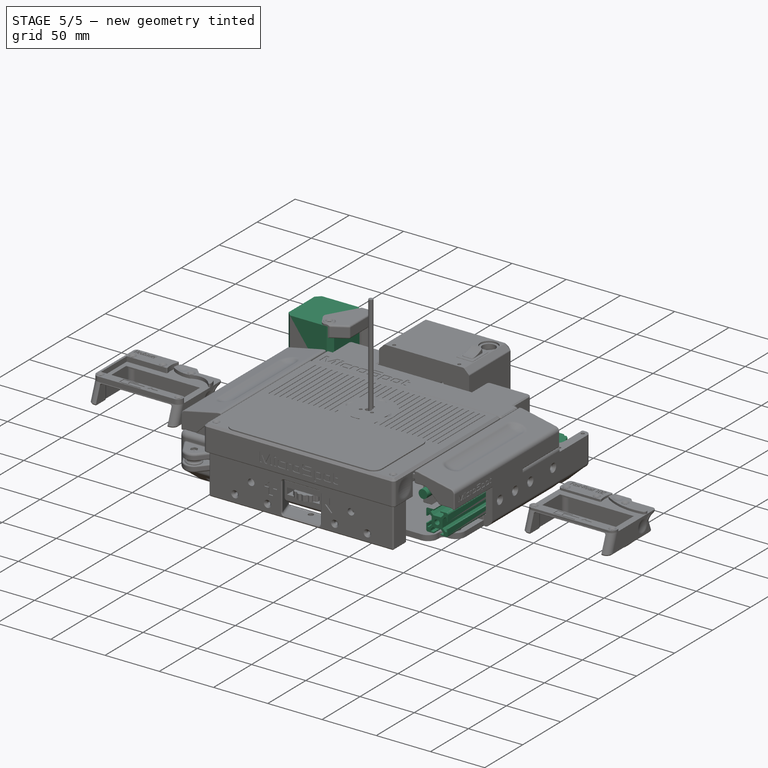
[diagram: stage 5 of 5 — iso view after this stage's code; geometry added in this stage tinted green]
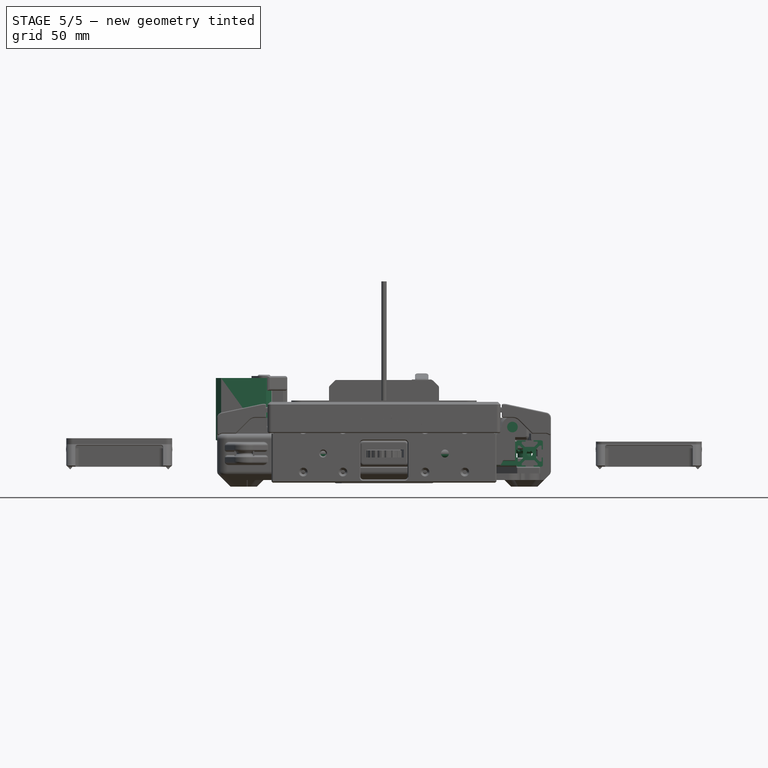
[diagram: stage 5 of 5 — front view after this stage's code; geometry added in this stage tinted green]
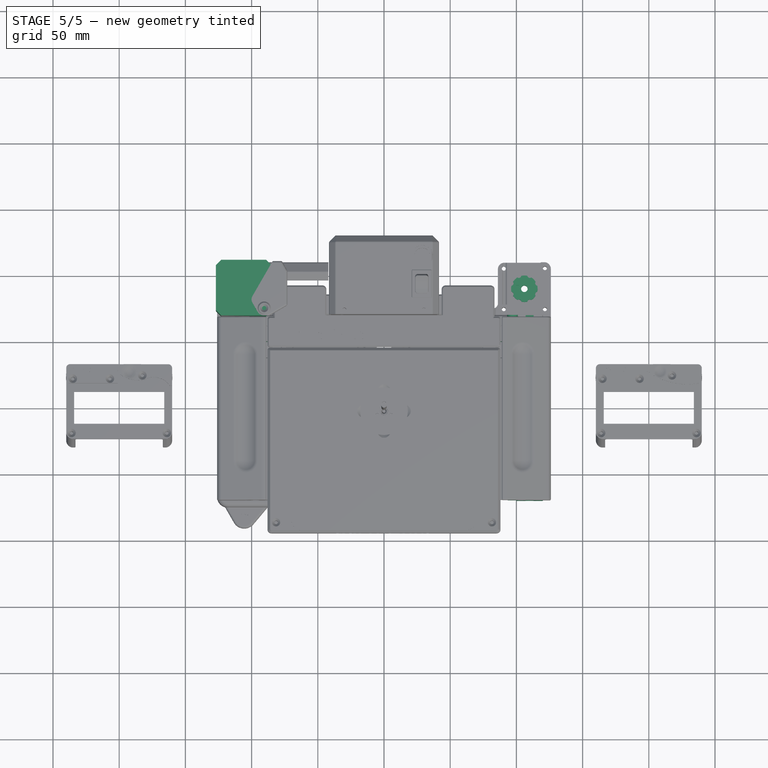
[diagram: stage 5 of 5 — top view after this stage's code; geometry added in this stage tinted green]
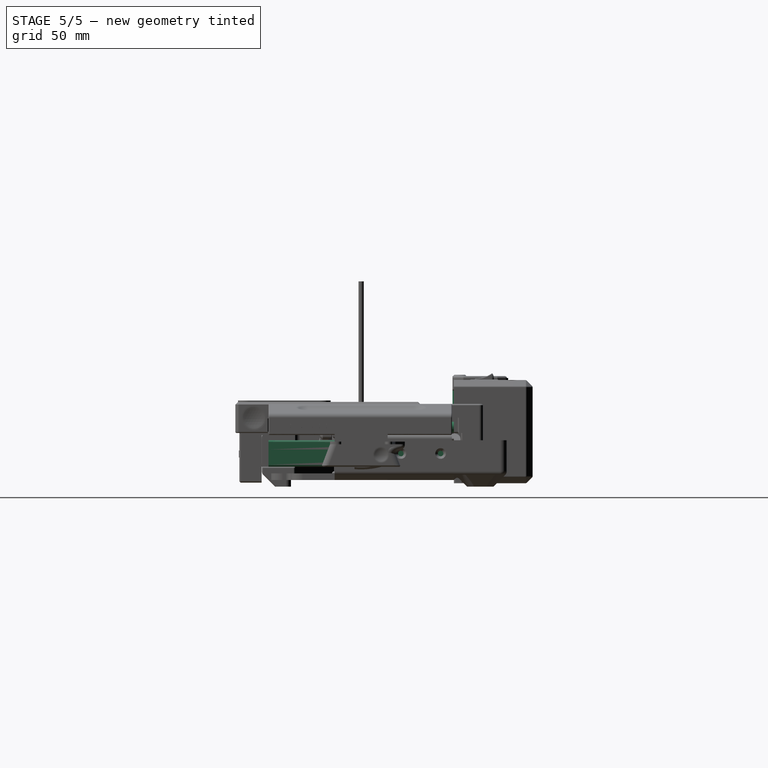
[diagram: stage 5 of 5 — right view after this stage's code; geometry added in this stage tinted green]
FEATURE [Part::Feature] Fillet002  label="T slot extrusion 20x20x200.001"
  Placement = pos=(-100,-70,0) rot=(0,-1,0;1.5708rad)
  shape: bbox 200 x 20 x 20 mm, 51 faces (baked)
FEATURE [Part::Feature] Fillet001001  label="T slot extrusion 20x20x140.001"
  Placement = pos=(-120,-70,0) rot=(1,0,0;1.5708rad)
  shape: bbox 20 x 140 x 20 mm, 51 faces (baked)
FEATURE [Part::Cylinder] Cylinder001  label="XBar"
  Angle = 360
  Height = 172
  Placement = pos=(-86,-25,10) rot=(0,1,0;1.5708rad)
  Radius = 4
FEATURE [Part::Cylinder] Cylinder  label="YBar"
  Angle = 360
  Height = 140
  Placement = pos=(-97,70,30) rot=(1,0,0;1.5708rad)
  Radius = 4
FEATURE [Part::Cylinder] Cylinder002  label="LM8UU"
  Angle = 360
  Height = 24
  Placement = pos=(-24,-25,10) rot=(0,1,0;1.5708rad)
  Radius = 7.5
FEATURE [Sketcher::SketchObject] Sketch  label="StringPath"
  Placement = pos=(0,0,10) rot=(0,0,1;0rad)
  sketch-geometry (18):
    g0: ArcOfCircle CenterX=-106 CenterY=90 CenterZ=0 NormalX=0 NormalY=0 NormalZ=1 Radius=5.5 StartAngle=6.27583 EndAngle=9.42478
    g1: ArcOfCircle CenterX=106 CenterY=90 CenterZ=0 NormalX=0 NormalY=0 NormalZ=1 Radius=5.5 StartAngle=8.0041e-08 EndAngle=3.17907
    g2: ArcOfCircle CenterX=105.5 CenterY=-82 CenterZ=0 NormalX=0 NormalY=0 NormalZ=1 Radius=6 StartAngle=3.09595 EndAngle=6.28319
    g3: ArcOfCircle CenterX=95 CenterY=-22 CenterZ=0 NormalX=0 NormalY=0 NormalZ=1 Radius=6 StartAngle=6.25815 EndAngle=7.85398
    g4: ArcOfCircle CenterX=95 CenterY=22 CenterZ=0 NormalX=0 NormalY=0 NormalZ=1 Radius=6 StartAngle=4.71239 EndAngle=6.29051
    g5: ArcOfCircle CenterX=-95 CenterY=22 CenterZ=0 NormalX=0 NormalY=0 NormalZ=1 Radius=6 StartAngle=3.13423 EndAngle=4.71239
    g6: ArcOfCircle CenterX=-95 CenterY=-22 CenterZ=0 NormalX=0 NormalY=0 NormalZ=1 Radius=6 StartAngle=1.5708 EndAngle=3.16664
    g7: ArcOfCircle CenterX=-105.5 CenterY=-82 CenterZ=0 NormalX=0 NormalY=0 NormalZ=1 Radius=6 StartAngle=3.14159 EndAngle=6.30824
    g8: LineSegment StartX=-111.5 StartY=90 StartZ=0 EndX=-111.5 EndY=-82 EndZ=0
    g9: LineSegment StartX=-100.998 StartY=-22.1503 StartZ=0 EndX=-99.5019 EndY=-81.8497 EndZ=0
    g10: LineSegment StartX=-95 StartY=-16 StartZ=0 EndX=95 EndY=-16 EndZ=0
    g11: LineSegment StartX=-100.5 StartY=89.9595 StartZ=0 EndX=-101 EndY=22.0442 EndZ=0
    g12: LineSegment StartX=100.504 StartY=89.7939 StartZ=0 EndX=101 EndY=22.0439 EndZ=0
    g13: LineSegment StartX=111.5 StartY=90 StartZ=0 EndX=111.5 EndY=-82 EndZ=0
    g14: LineSegment StartX=99.5062 StartY=-81.7262 StartZ=0 EndX=100.998 EndY=-22.1502 EndZ=0
    g15: LineSegment StartX=-95 StartY=16 StartZ=0 EndX=-21.9915 EndY=16 EndZ=0
    g16: LineSegment StartX=25.9262 StartY=16 StartZ=0 EndX=95 EndY=16 EndZ=0
    g17: LineSegment [constr] StartX=-59.6823 StartY=0 StartZ=0 EndX=-14.2958 EndY=0 EndZ=0
  constraints (52):
    c: Symmetric(g0,g1,g-2)
    c: Symmetric(g2,g7,g-2)
    c: Equal(g7,g2)
    c: Symmetric(g6,g3,g-2)
    c: Symmetric(g5,g4,g-2)
    c: DistanceY(g1) = 90
    c: DistanceY(g2) = -82
    c: Coincident(g13,g1)
    c: Coincident(g13,g2)
    c: Coincident(g14,g2)
    c: Coincident(g14,g3)
    c: Coincident(g3,g10)
    c: Coincident(g4,g12)
    c: Coincident(g6,g10)
    c: Coincident(g6,g9)
    c: Coincident(g7,g9)
    c: Coincident(g7,g8)
    c: Coincident(g8,g0)
    c: Coincident(g11,g0)
    c: Coincident(g12,g1)
    c: Coincident(g5,g11)
    c: Coincident(g16,g4)
    c: Coincident(g15,g5)
    c: Horizontal(g15)
    c: Horizontal(g16)
    c: PointOnObject(g15,g16)
    c: Tangent(g5,g15)
    c: Tangent(g11,g0)
    c: Tangent(g9,g7)
    c: Tangent(g9,g6)
    c: Tangent(g10,g3)
    c: Tangent(g16,g4)
    c: Equal(g6,g5)
    c: Tangent(g1,g13)
    c: Tangent(g8,g0)
    c: Radius(g4) = 6
    c: Radius(g2) = 6
    c: Tangent(g4,g12)
    c: DistanceX(g5) = -95
    c: Tangent(g10,g6)
    c: Tangent(g14,g3)
    c: Radius(g3) = 6
    c: Equal(g0,g1)
    c: Vertical(g8)
    c: Vertical(g13)
    c: Radius(g0) = 5.5
    c: DistanceX(g0) = -106
    c: Tangent(g5,g11)
    c: DistanceY(g6,g5) = 44
    c: Horizontal(g17)
    c: Symmetric(g5,g6,g17)
    c: PointOnObject(g17,g-1)
FEATURE [Part::Mirroring] Part__Mirroring  label="T slot extrusion 20x20x140.001 (Mirror #1)"
  Base = (0,0,0)
  Normal = (1,0,0)
  Source = -> Fillet001001
FEATURE [Part::Mirroring] Part__Mirroring001  label="YBar (Mirror #2)"
  Base = (0,0,0)
  Normal = (1,0,0)
  Source = -> Cylinder
FEATURE [Part::Mirroring] Part__Mirroring007  label="T slot extrusion 20x20x200.001 (Mirror #8)"
  Base = (0,0,0)
  Normal = (0,1,0)
  Source = -> Fillet002
FEATURE [Part::Mirroring] Part__Mirroring008  label="XBar (Mirror #9)"
  Base = (0,0,0)
  Normal = (0,1,0)
  Source = -> Cylinder001
FEATURE [Part::Cylinder] Cylinder005  label="LM8UU002"
  Angle = 360
  Height = 24
  Placement = pos=(0,-25,10) rot=(0,1,0;1.5708rad)
  Radius = 7.5
FEATURE [Part::Cylinder] Cylinder006  label="LM8UU003"
  Angle = 360
  Height = 24
  Placement = pos=(-12,25,10) rot=(0,1,0;1.5708rad)
  Radius = 7.5
FEATURE [Part::Mirroring] Part__Mirroring011  label="623ZZ (Mirror #11)"
  Base = (0,0,0)
  Normal = (0,1,0)
  Source = -> Cylinder004
FEATURE [Part::Mirroring] Part__Mirroring013  label="623ZZ (Mirror #13)"
  Base = (0,0,0)
  Normal = (1,0,0)
  Source = -> Cylinder004
FEATURE [Part::Mirroring] Part__Mirroring015  label="623ZZ (Mirror #15)"
  Base = (0,0,0)
  Normal = (1,0,0)
  Source = -> Part__Mirroring011
FEATURE [Part::Box] Box001  label="SampleMaster"
  Height = 1
  Length = 26
  Placement = pos=(38,-13,42) rot=(0,0,1;1.5708rad)
  Width = 76
FEATURE [App::DocumentObjectGroup] Group005  label="Profiles"
  Group = -> [Part__Mirroring007,Part__Mirroring]
FEATURE [Part::FeaturePython] NEMAPulley_01  label="NEMAPulley"  # a2plus imported part (geometry in sourceFile) (typed FeaturePython)
  Placement = pos=(-106,90,18) rot=(1,0,0;3.14159rad)
  fixedPosition = false
  sourceFile = ./src/MainFrame/NEMAPulley.fcstd
  timeLastImport = 1.541e+09
  updateColors = true
FEATURE [Part::Mirroring] Part__Mirroring018  label="NEMAPulley (Mirror #12)"
  Base = (0,0,0)
  Normal = (1,0,0)
  Source = -> NEMAPulley_01
FEATURE [Part::Mirroring] Part__Mirroring003  label="NEMA001"
  Base = (0,0,0)
  Normal = (1,0,0)
  Source = -> Chamfer
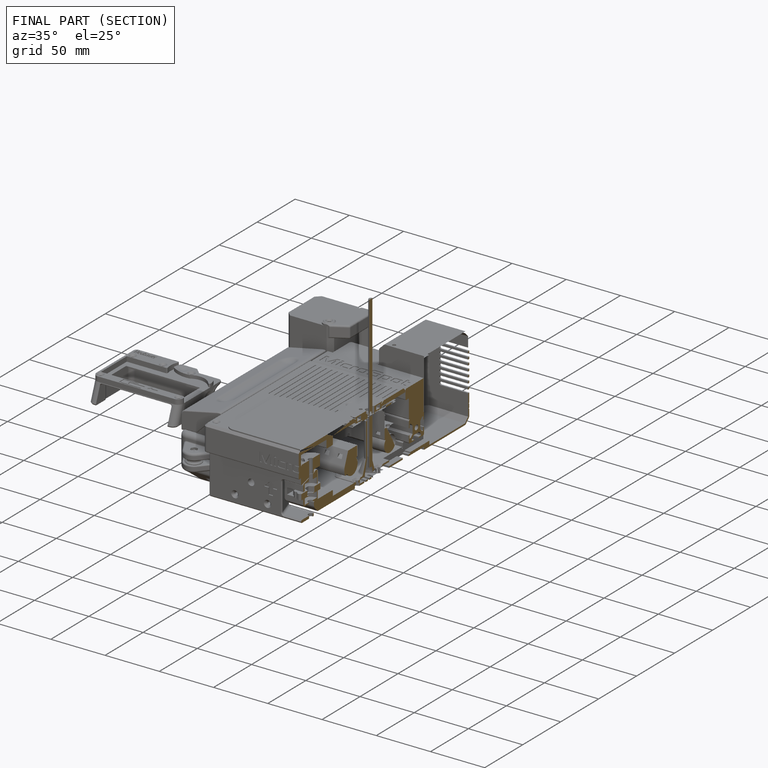
[diagram: finished part — half-section view (interior)]
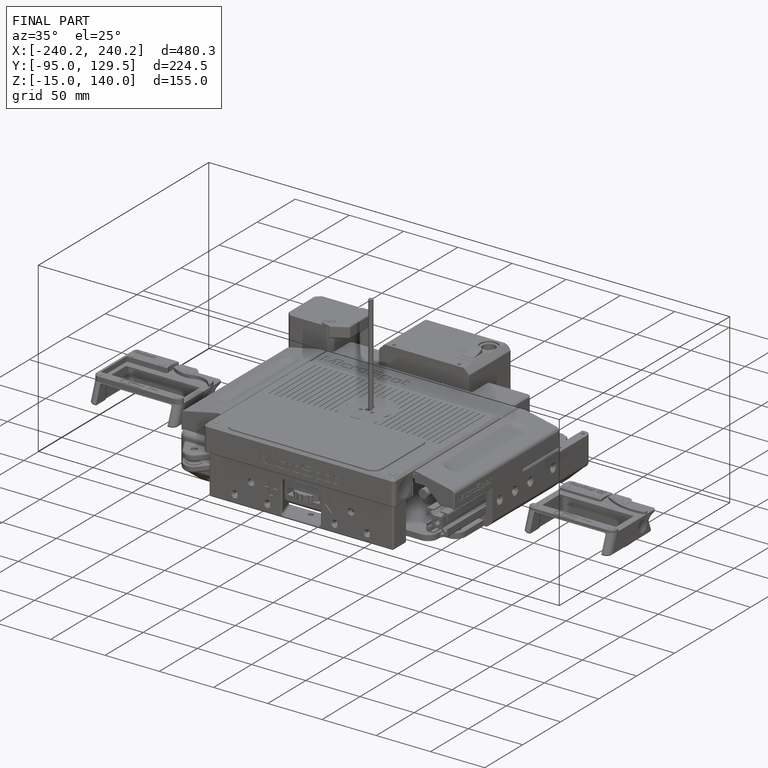
[diagram: finished part — iso view with bounding-box wireframe]
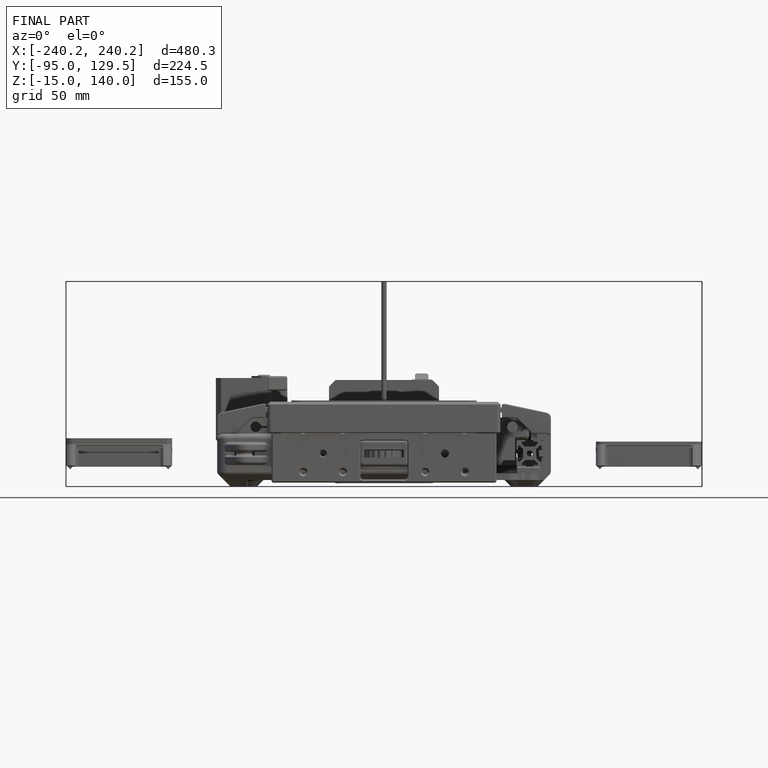
[diagram: finished part — front view with bounding-box wireframe]
